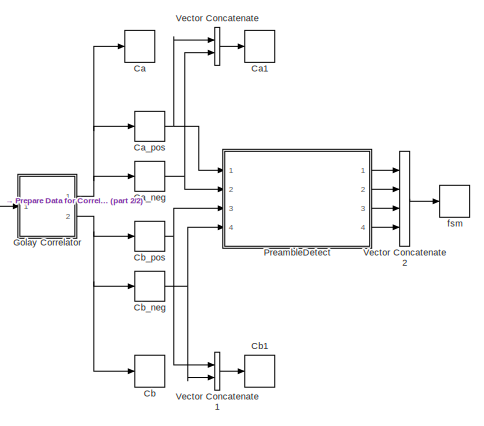
[diagram: root canvas - part 1/2, right side, full height]
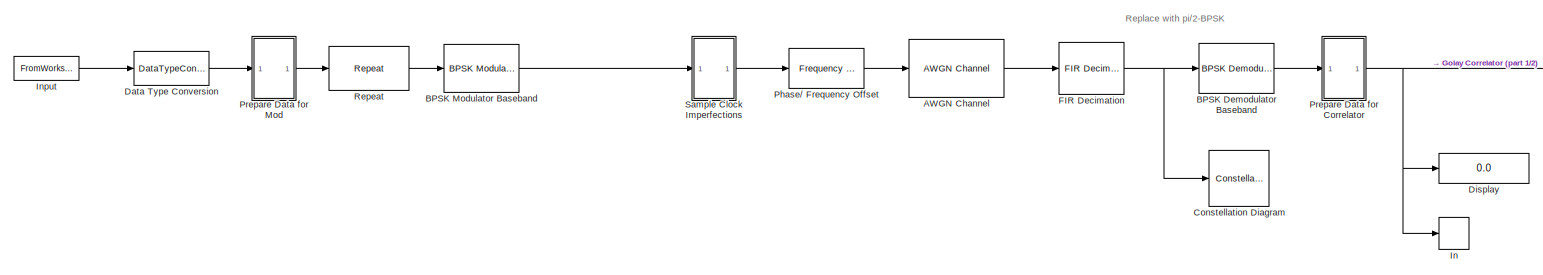
[diagram: root canvas - part 2/2, full width, middle band]
MODEL slx_14ae3e399969
KIND model
BLOCK [Reference] AWGN Channel  REF=commchan3/AWGN
Channel
  EbNodB = 0
  EsNodB = 10
  InputProcessing = Columns as channels (frame based)
  Ports = [1, 1]
  Ps = 1
  SNRdB = 10
  SourceBlock = commchan3/AWGN\nChannel
  SourceType = AWGN Channel
  Tsym = 1
  UserDataPersistent = on
  bitsPerSym = 1
  noiseMode = Signal to noise ratio  (Eb/No)
  seed = 67
  variance = 1
BLOCK [Reference] BPSK Demodulator Baseband  REF=commdigbbndpm3/BPSK
Demodulator
Baseband
  DecType = Hard decision
  Ph = 0
  Ports = [1, 1]
  SourceBlock = commdigbbndpm3/BPSK\nDemodulator\nBaseband
  SourceType = BPSK Demodulator Baseband
  VarSource = Dialog
  Variance = 1
  derotateFactorDTMode = Same word length as input
  derotateFactorWordLen = 16
  outDtype = Inherit via internal rule
BLOCK [Reference] BPSK Modulator Baseband  REF=commdigbbndpm3/BPSK
Modulator
Baseband
  Ph = 0
  Ports = [1, 1]
  SourceBlock = commdigbbndpm3/BPSK\nModulator\nBaseband
  SourceType = BPSK Modulator Baseband
  outDtype = double
  outFracLen = 15
  outFracLenMode = Best precision
  outUDDataType = sfix(16)
  outWordLen = 16
BLOCK [TimeScope] Ca
  DefaultConfigurationName = spbscopes.TimeScopeBlockCfg
  NumInputPorts = 1
  Ports = [1]
  ScopeSpecificationString = spbscopes.TimeScopeBlockCfg('CurrentConfiguration', extmgr.ConfigurationSet(extmgr.Configuration('Core','General UI',true),extmgr.Configuration('Core','Source UI',true),extmgr.Configuration('Sources','WiredSimulink',true,'PointsPerSignal',500000,'DataLoggingVariableName','ScopeData3'),extmgr.Configuration('Visuals','Time Domain',true,'DisplayPropertyDefaults',struct('MinYLimReal','-140','MaxYLimRe...<+1461ch>
  UserDataPersistent = on
BLOCK [TimeScope] Ca1
  DefaultConfigurationName = spbscopes.TimeScopeBlockCfg
  NumInputPorts = 1
  Ports = [1]
  ScopeSpecificationString = spbscopes.TimeScopeBlockCfg('CurrentConfiguration', extmgr.ConfigurationSet(extmgr.Configuration('Core','General UI',true),extmgr.Configuration('Core','Source UI',true),extmgr.Configuration('Sources','WiredSimulink',true,'PointsPerSignal',500000,'DataLoggingVariableName','ScopeData2'),extmgr.Configuration('Visuals','Time Domain',true,'DisplayPropertyDefaults',struct('MinYLimReal','-0.125','MaxYLim...<+1468ch>
  UserDataPersistent = on
BLOCK [HitCross] Ca_neg
  HitCrossingDirection = falling
  HitCrossingOffset = -50
  Ports = [1, 1]
BLOCK [HitCross] Ca_pos
  HitCrossingDirection = rising
  HitCrossingOffset = 50
  Ports = [1, 1]
BLOCK [TimeScope] Cb
  DefaultConfigurationName = spbscopes.TimeScopeBlockCfg
  NumInputPorts = 1
  Ports = [1]
  ScopeSpecificationString = spbscopes.TimeScopeBlockCfg('CurrentConfiguration', extmgr.ConfigurationSet(extmgr.Configuration('Core','General UI',true),extmgr.Configuration('Core','Source UI',true),extmgr.Configuration('Sources','WiredSimulink',true,'PointsPerSignal',50000,'DataLoggingVariableName','ScopeData4'),extmgr.Configuration('Visuals','Time Domain',true,'DisplayPropertyDefaults',struct('MinYLimReal','-140','MaxYLimRea...<+1437ch>
  UserDataPersistent = on
BLOCK [TimeScope] Cb1
  DefaultConfigurationName = spbscopes.TimeScopeBlockCfg
  NumInputPorts = 1
  Ports = [1]
  ScopeSpecificationString = spbscopes.TimeScopeBlockCfg('CurrentConfiguration', extmgr.ConfigurationSet(extmgr.Configuration('Core','General UI',true),extmgr.Configuration('Core','Source UI',true),extmgr.Configuration('Sources','WiredSimulink',true,'PointsPerSignal',50000,'DataLoggingVariableName','ScopeData3'),extmgr.Configuration('Visuals','Time Domain',true,'DisplayPropertyDefaults',struct('MinYLimReal','-0.125','MaxYLimR...<+1467ch>
  UserDataPersistent = on
BLOCK [HitCross] Cb_neg
  HitCrossingDirection = falling
  HitCrossingOffset = -50
  Ports = [1, 1]
BLOCK [HitCross] Cb_pos
  HitCrossingDirection = rising
  HitCrossingOffset = 50
  Ports = [1, 1]
BLOCK [ConstellationDiagram] Constellation Diagram
  Ports = [1]
  ScopeSpecificationString = comm.scopes.ConstellationDiagramBlockCfg('CurrentConfiguration', extmgr.ConfigurationSet(extmgr.Configuration('Core','General UI',true),extmgr.Configuration('Core','Source UI',true),extmgr.Configuration('Sources','WiredSimulink',true),extmgr.Configuration('Sources','Simulink',false),extmgr.Configuration('Sources','File',false),extmgr.Configuration('Sources','Workspace',false),extmgr.Configuration(...<+1721ch>
BLOCK [DataTypeConversion] Data Type Conversion
  OutDataTypeStr = int8
  RndMeth = Nearest
  SaturateOnIntegerOverflow = off
BLOCK [Display] Display
  Decimation = 1
  Ports = [1]
BLOCK [Reference] FIR Decimation  REF=dspmlti4/FIR
Decimation
  D = 4
  FilterObject = Hm_firdecim
  FilterSource = Specify via dialog
  InputProcessing = Columns as channels (frame based)
  LockScale = off
  Ports = [1, 1]
  SourceBlock = dspmlti4/FIR\nDecimation
  SourceType = FIR Decimation
  UserDataPersistent = on
  accumDataTypeStr = Inherit: Inherit via internal rule
  accumFracLength = 30
  accumLastDataTypeStr = Inherit: Inherit via internal rule
  accumMode = Inherit via internal rule
  accumWordLength = 32
  additionalParams = off
  allowOverrides = off
  filtStruct = Direct form
  firstCoeffDataTypeStr = Inherit: Same word length as input
  firstCoeffFracLength = 15
  firstCoeffLastDataTypeStr = Inherit: Same word length as input
  firstCoeffMax = []
  firstCoeffMin = []
  firstCoeffMode = Same word length as input
  firstCoeffWordLength = 16
  framing = Allow multirate processing
  h = fir1(45, 0.18)
  inputOffset = 0
  outputBufInitCond = 0
  outputDataTypeStr = Inherit: Same as accumulator
  outputFracLength = 15
  outputLastDataTypeStr = Inherit: Same as accumulator
  outputMax = []
  outputMin = []
  outputMode = Same as accumulator
  outputWordLength = 16
  overflowMode = off
  prodOutputDataTypeStr = Inherit: Inherit via internal rule
  prodOutputFracLength = 30
  prodOutputLastDataTypeStr = Inherit: Inherit via internal rule
  prodOutputMode = Inherit via internal rule
  prodOutputWordLength = 32
  roundingMode = Floor
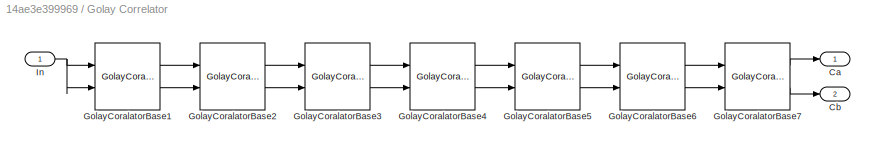
BLOCK [SubSystem] Golay Correlator
  Ports = [1, 2]
  RequestExecContextInheritance = off
BLOCK [Outport] Golay Correlator/Ca
  IconDisplay = Port number
BLOCK [Outport] Golay Correlator/Cb
  IconDisplay = Port number
  Port = 2
BLOCK [Reference] Golay Correlator/GolayCoralatorBase1  REF=golayLib/GolayCoralatorBase
  Ports = [2, 2]
  SourceBlock = golayLib/GolayCoralatorBase
  SourceType = Golay Correlator Base
  dSub = D_128(1)
  wSub = W_128(1)
BLOCK [Reference] Golay Correlator/GolayCoralatorBase2  REF=golayLib/GolayCoralatorBase
  Ports = [2, 2]
  SourceBlock = golayLib/GolayCoralatorBase
  SourceType = Golay Correlator Base
  dSub = D_128(2)
  wSub = W_128(2)
BLOCK [Reference] Golay Correlator/GolayCoralatorBase3  REF=golayLib/GolayCoralatorBase
  Ports = [2, 2]
  SourceBlock = golayLib/GolayCoralatorBase
  SourceType = Golay Correlator Base
  dSub = D_128(3)
  wSub = W_128(3)
BLOCK [Reference] Golay Correlator/GolayCoralatorBase4  REF=golayLib/GolayCoralatorBase
  Ports = [2, 2]
  SourceBlock = golayLib/GolayCoralatorBase
  SourceType = Golay Correlator Base
  dSub = D_128(4)
  wSub = W_128(4)
BLOCK [Reference] Golay Correlator/GolayCoralatorBase5  REF=golayLib/GolayCoralatorBase
  Ports = [2, 2]
  SourceBlock = golayLib/GolayCoralatorBase
  SourceType = Golay Correlator Base
  dSub = D_128(5)
  wSub = W_128(5)
BLOCK [Reference] Golay Correlator/GolayCoralatorBase6  REF=golayLib/GolayCoralatorBase
  Ports = [2, 2]
  SourceBlock = golayLib/GolayCoralatorBase
  SourceType = Golay Correlator Base
  dSub = D_128(6)
  wSub = W_128(6)
BLOCK [Reference] Golay Correlator/GolayCoralatorBase7  REF=golayLib/GolayCoralatorBase
  Ports = [2, 2]
  SourceBlock = golayLib/GolayCoralatorBase
  SourceType = Golay Correlator Base
  dSub = D_128(7)
  wSub = W_128(7)
BLOCK [Inport] Golay Correlator/In
  IconDisplay = Port number
BLOCK [TimeScope] In
  DefaultConfigurationName = spbscopes.TimeScopeBlockCfg
  NumInputPorts = 1
  Ports = [1]
  ScopeSpecificationString = spbscopes.TimeScopeBlockCfg('CurrentConfiguration', extmgr.ConfigurationSet(extmgr.Configuration('Core','General UI',true),extmgr.Configuration('Core','Source UI',true),extmgr.Configuration('Sources','WiredSimulink',true,'PointsPerSignal',5000000,'DataLoggingVariableName','ScopeData2'),extmgr.Configuration('Visuals','Time Domain',true,'DisplayPropertyDefaults',struct('MinYLimReal','-1.25','MaxYLim...<+1457ch>
  UserDataPersistent = on
BLOCK [FromWorkspace] Input
  Interpolate = off
  OutputAfterFinalValue = Holding final value
  SampleTime = 1
  VariableName = simX
  ZeroCross = on
BLOCK [Reference] Phase// Frequency Offset  REF=commrflib2/Phase//
Frequency
Offset
  Ports = [1, 1]
  SourceBlock = commrflib2/Phase//\nFrequency\nOffset
  SourceType = Phase/Frequency Offset
  freqOffset = 0
  freqPort = off
  phaseOffset = 0
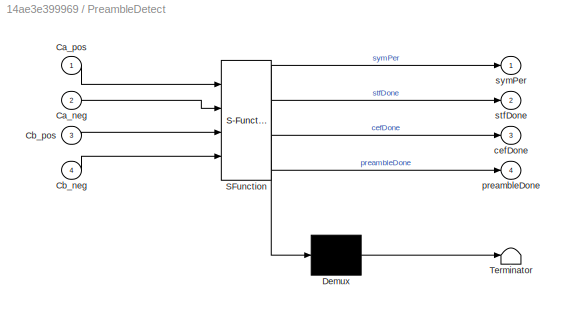
BLOCK [SubSystem] PreambleDetect
  ErrorFcn = Stateflow.Translate.translate
  PermitHierarchicalResolution = ExplicitOnly
  Ports = [4, 4]
  RequestExecContextInheritance = off
  SFBlockType = Chart
  TreatAsAtomicUnit = on
BLOCK [Demux] PreambleDetect/ Demux 
  Outputs = 1
  Ports = [1, 1]
BLOCK [S-Function] PreambleDetect/ SFunction 
  EnableBusSupport = on
  FunctionName = sf_sfun
  Parameters = cbTol,cef_note,tol
  PortCounts = [4 5]
  Ports = [4, 5]
  Tag = Stateflow S-Function golayCorrelator 3
BLOCK [Terminator] PreambleDetect/ Terminator 
BLOCK [Inport] PreambleDetect/Ca_neg
  IconDisplay = Port number
  Port = 2
BLOCK [Inport] PreambleDetect/Ca_pos
  IconDisplay = Port number
BLOCK [Inport] PreambleDetect/Cb_neg
  IconDisplay = Port number
  Port = 4
BLOCK [Inport] PreambleDetect/Cb_pos
  IconDisplay = Port number
  Port = 3
BLOCK [Outport] PreambleDetect/cefDone
  IconDisplay = Port number
  Port = 3
BLOCK [Outport] PreambleDetect/preambleDone
  IconDisplay = Port number
  Port = 4
BLOCK [Outport] PreambleDetect/stfDone
  IconDisplay = Port number
  Port = 2
BLOCK [Outport] PreambleDetect/symPer
  IconDisplay = Port number
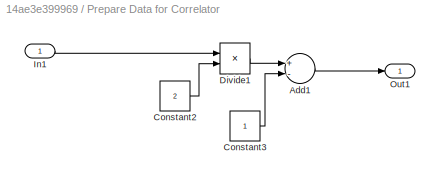
BLOCK [SubSystem] Prepare Data for Correlator
  Ports = [1, 1]
  RequestExecContextInheritance = off
BLOCK [Sum] Prepare Data for Correlator/Add1
  InputSameDT = off
  Inputs = +-
  OutDataTypeStr = Inherit: Inherit via internal rule
  Ports = [2, 1]
  SaturateOnIntegerOverflow = off
BLOCK [Constant] Prepare Data for Correlator/Constant2
  Value = 2
BLOCK [Constant] Prepare Data for Correlator/Constant3
BLOCK [Product] Prepare Data for Correlator/Divide1
  InputSameDT = off
  Inputs = **
  OutDataTypeStr = Inherit: Inherit via internal rule
  Ports = [2, 1]
  RndMeth = Floor
  SaturateOnIntegerOverflow = off
BLOCK [Inport] Prepare Data for Correlator/In1
  IconDisplay = Port number
BLOCK [Outport] Prepare Data for Correlator/Out1
  IconDisplay = Port number
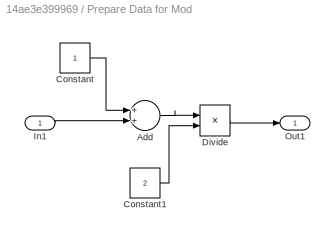
BLOCK [SubSystem] Prepare Data for Mod
  Ports = [1, 1]
  RequestExecContextInheritance = off
BLOCK [Sum] Prepare Data for Mod/Add
  InputSameDT = off
  OutDataTypeStr = Inherit: Inherit via internal rule
  Ports = [2, 1]
  SaturateOnIntegerOverflow = off
BLOCK [Constant] Prepare Data for Mod/Constant
BLOCK [Constant] Prepare Data for Mod/Constant1
  Value = 2
BLOCK [Product] Prepare Data for Mod/Divide
  InputSameDT = off
  Inputs = */
  OutDataTypeStr = Inherit: Inherit via internal rule
  Ports = [2, 1]
  RndMeth = Floor
  SaturateOnIntegerOverflow = off
BLOCK [Inport] Prepare Data for Mod/In1
  IconDisplay = Port number
BLOCK [Outport] Prepare Data for Mod/Out1
  IconDisplay = Port number
BLOCK [Reference] Repeat  REF=dspsigops/Repeat
  InputProcessing = Columns as channels (frame based)
  N = 4
  Ports = [1, 1]
  RateOptions = Allow multirate processing
  SourceBlock = dspsigops/Repeat
  SourceType = Repeat
  UserDataPersistent = on
  ic = 0
  mode = Unused parameter value
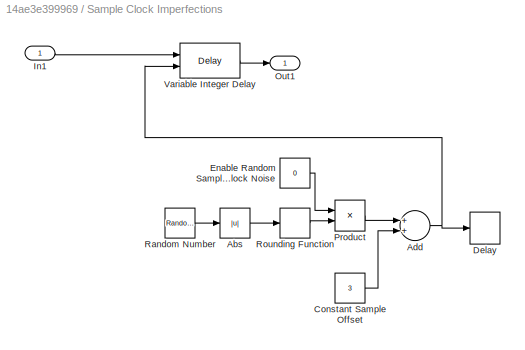
BLOCK [SubSystem] Sample Clock Imperfections
  Ports = [1, 1]
  RequestExecContextInheritance = off
BLOCK [Abs] Sample Clock Imperfections/Abs
  SaturateOnIntegerOverflow = off
BLOCK [Sum] Sample Clock Imperfections/Add
  InputSameDT = off
  OutDataTypeStr = Inherit: Inherit via internal rule
  Ports = [2, 1]
  SaturateOnIntegerOverflow = off
BLOCK [Constant] Sample Clock Imperfections/Constant Sample Offset
  Value = 3
BLOCK [TimeScope] Sample Clock Imperfections/Delay
  DefaultConfigurationName = spbscopes.TimeScopeBlockCfg
  NumInputPorts = 1
  Ports = [1]
  ScopeSpecificationString = spbscopes.TimeScopeBlockCfg('CurrentConfiguration', extmgr.ConfigurationSet(extmgr.Configuration('Core','General UI',true),extmgr.Configuration('Core','Source UI',true),extmgr.Configuration('Sources','WiredSimulink',true,'PointsPerSignal',5000000,'DataLoggingVariableName','ScopeData1'),extmgr.Configuration('Visuals','Time Domain',true,'DisplayPropertyDefaults',struct('MinYLimReal','2','MaxYLimReal...<+1413ch>
  UserDataPersistent = on
BLOCK [Constant] Sample Clock Imperfections/Enable Random Sample Clock Noise
  Value = 0
BLOCK [Inport] Sample Clock Imperfections/In1
  IconDisplay = Port number
BLOCK [Outport] Sample Clock Imperfections/Out1
  IconDisplay = Port number
BLOCK [Product] Sample Clock Imperfections/Product
  InputSameDT = off
  OutDataTypeStr = Inherit: Inherit via internal rule
  Ports = [2, 1]
  RndMeth = Floor
  SaturateOnIntegerOverflow = off
BLOCK [RandomNumber] Sample Clock Imperfections/Random Number
  Mean = 1
  SampleTime = 0.25
BLOCK [Rounding] Sample Clock Imperfections/Rounding Function
  Operator = round
BLOCK [Delay] Sample Clock Imperfections/Variable Integer Delay
  DelayLengthSource = Input port
  InputPortMap = u0,p1
  Ports = [2, 1]
BLOCK [Concatenate] Vector Concatenate
  ConcatenateDimension = 2
  Mode = Multidimensional array
  Ports = [2, 1]
BLOCK [Concatenate] Vector Concatenate1
  ConcatenateDimension = 2
  Mode = Multidimensional array
  Ports = [2, 1]
BLOCK [Concatenate] Vector Concatenate2
  ConcatenateDimension = 2
  Mode = Multidimensional array
  NumInputs = 4
  Ports = [4, 1]
BLOCK [TimeScope] fsm
  DefaultConfigurationName = spbscopes.TimeScopeBlockCfg
  NumInputPorts = 1
  Ports = [1]
  ScopeSpecificationString = spbscopes.TimeScopeBlockCfg('CurrentConfiguration', extmgr.ConfigurationSet(extmgr.Configuration('Core','General UI',true),extmgr.Configuration('Core','Source UI',true),extmgr.Configuration('Sources','WiredSimulink',true,'PointsPerSignal',50000,'DataLoggingVariableName','ScopeData1'),extmgr.Configuration('Visuals','Time Domain',true,'DisplayPropertyDefaults',struct('MinYLimReal','-16.0317','MaxYLi...<+1887ch>
  UserDataPersistent = on
ANNOTATION (root): Replace with pi/2-BPSK
LINE AWGN Channel:1 -> FIR Decimation:1
LINE BPSK Demodulator Baseband:1 -> Prepare Data for Correlator:1
LINE BPSK Modulator Baseband:1 -> Sample Clock Imperfections:1
NET Ca_neg:1 -> PreambleDetect:2, Vector Concatenate:2
NET Ca_pos:1 -> PreambleDetect:1, Vector Concatenate:1
NET Cb_neg:1 -> PreambleDetect:4, Vector Concatenate1:2
NET Cb_pos:1 -> PreambleDetect:3, Vector Concatenate1:1
LINE Data Type Conversion:1 -> Prepare Data for Mod:1
NET FIR Decimation:1 -> BPSK Demodulator Baseband:1, Constellation Diagram:1
LINE Golay Correlator/GolayCoralatorBase1:1 -> Golay Correlator/GolayCoralatorBase2:1
LINE Golay Correlator/GolayCoralatorBase1:2 -> Golay Correlator/GolayCoralatorBase2:2
LINE Golay Correlator/GolayCoralatorBase2:1 -> Golay Correlator/GolayCoralatorBase3:1
LINE Golay Correlator/GolayCoralatorBase2:2 -> Golay Correlator/GolayCoralatorBase3:2
LINE Golay Correlator/GolayCoralatorBase3:1 -> Golay Correlator/GolayCoralatorBase4:1
LINE Golay Correlator/GolayCoralatorBase3:2 -> Golay Correlator/GolayCoralatorBase4:2
LINE Golay Correlator/GolayCoralatorBase4:1 -> Golay Correlator/GolayCoralatorBase5:1
LINE Golay Correlator/GolayCoralatorBase4:2 -> Golay Correlator/GolayCoralatorBase5:2
LINE Golay Correlator/GolayCoralatorBase5:1 -> Golay Correlator/GolayCoralatorBase6:1
LINE Golay Correlator/GolayCoralatorBase5:2 -> Golay Correlator/GolayCoralatorBase6:2
LINE Golay Correlator/GolayCoralatorBase6:1 -> Golay Correlator/GolayCoralatorBase7:1
LINE Golay Correlator/GolayCoralatorBase6:2 -> Golay Correlator/GolayCoralatorBase7:2
LINE Golay Correlator/GolayCoralatorBase7:1 -> Golay Correlator/Ca:1
LINE Golay Correlator/GolayCoralatorBase7:2 -> Golay Correlator/Cb:1
NET Golay Correlator/In:1 -> Golay Correlator/GolayCoralatorBase1:1, Golay Correlator/GolayCoralatorBase1:2
NET Golay Correlator:1 -> Ca:1, Ca_neg:1, Ca_pos:1
NET Golay Correlator:2 -> Cb:1, Cb_neg:1, Cb_pos:1
LINE Input:1 -> Data Type Conversion:1
LINE Phase// Frequency Offset:1 -> AWGN Channel:1
LINE PreambleDetect:1 -> Vector Concatenate2:1
LINE PreambleDetect:2 -> Vector Concatenate2:2
LINE PreambleDetect:3 -> Vector Concatenate2:3
LINE PreambleDetect:4 -> Vector Concatenate2:4
LINE Prepare Data for Correlator/Add1:1 -> Prepare Data for Correlator/Out1:1
LINE Prepare Data for Correlator/Constant2:1 -> Prepare Data for Correlator/Divide1:2
LINE Prepare Data for Correlator/Constant3:1 -> Prepare Data for Correlator/Add1:2
LINE Prepare Data for Correlator/Divide1:1 -> Prepare Data for Correlator/Add1:1
LINE Prepare Data for Correlator/In1:1 -> Prepare Data for Correlator/Divide1:1
NET Prepare Data for Correlator:1 -> Display:1, Golay Correlator:1, In:1
LINE Prepare Data for Mod/Add:1 -> Prepare Data for Mod/Divide:1
LINE Prepare Data for Mod/Constant1:1 -> Prepare Data for Mod/Divide:2
LINE Prepare Data for Mod/Constant:1 -> Prepare Data for Mod/Add:1
LINE Prepare Data for Mod/Divide:1 -> Prepare Data for Mod/Out1:1
LINE Prepare Data for Mod/In1:1 -> Prepare Data for Mod/Add:2
LINE Prepare Data for Mod:1 -> Repeat:1
LINE Repeat:1 -> BPSK Modulator Baseband:1
LINE Sample Clock Imperfections/Abs:1 -> Sample Clock Imperfections/Rounding Function:1
NET Sample Clock Imperfections/Add:1 -> Sample Clock Imperfections/Delay:1, Sample Clock Imperfections/Variable Integer Delay:2
LINE Sample Clock Imperfections/Constant Sample Offset:1 -> Sample Clock Imperfections/Add:2
LINE Sample Clock Imperfections/Enable Random Sample Clock Noise:1 -> Sample Clock Imperfections/Product:1
LINE Sample Clock Imperfections/In1:1 -> Sample Clock Imperfections/Variable Integer Delay:1
LINE Sample Clock Imperfections/Product:1 -> Sample Clock Imperfections/Add:1
LINE Sample Clock Imperfections/Random Number:1 -> Sample Clock Imperfections/Abs:1
LINE Sample Clock Imperfections/Rounding Function:1 -> Sample Clock Imperfections/Product:2
LINE Sample Clock Imperfections/Variable Integer Delay:1 -> Sample Clock Imperfections/Out1:1
LINE Sample Clock Imperfections:1 -> Phase// Frequency Offset:1
LINE Vector Concatenate1:1 -> Cb1:1
LINE Vector Concatenate2:1 -> fsm:1
LINE Vector Concatenate:1 -> Ca1:1
note: NET lines group one-source signal fan-out (src -> all destinations, sorted); 1:1 wires keep LINE
CHART PreambleDetect states=11 transitions=18
  STATE_LABEL 'Preamble'
  STATE_LABEL 'STF'
  STATE_LABEL 'STF_Neg\nentry:\n symPer = (symPer + counter)/2;\n cbCount = cbCount + 1;\n counter = 1;\nduring:\n counter = counter +1;'
  STATE_LABEL 'STF_Initial\nentry:\n symPer = (symPer + counter)/2;\n cbCount = cbCount + 1;\n counter = 1;\nduring:\n counter = counter +1;\n'
  STATE_LABEL '[Cb_pos == 1]'
  STATE_LABEL '[Cb_neg == 1]'
  STATE_LABEL 'CEF'
  STATE_LABEL 'Need actual logic for CEF, right now only checks for correct sequence'
  STATE_LABEL 'STF_Done\nentry:\nstfDone = 1;\nsymPer = (symPer + counter)/2;\ncbCount = cbCount + 1;\ncounter = 1;\nduring:\n counter = counter +1;'
  STATE_LABEL 'CEF_Checking\nentry:\nsymPer = (symPer + counter)/2;\ncefCount = cefCount + 1;\ncounter = 1;\nduring:\n counter = counter +1;'
  STATE_LABEL '[Cb_neg == 1]/{\ncefCount = 1;\n}'
  STATE_LABEL '[cefSeqCheck(Ca_pos,Ca_neg,Cb_pos, Cb_neg, cefCount) == 1 && cefCount < length(cef_note)]'
  STATE_LABEL '[Ca_neg == 1]'
  STATE_LABEL 'STF'
  STATE_LABEL 'STF_Neg\nentry:\n symPer = (symPer + counter)/2;\n cbCount = cbCount + 1;\n counter = 1;\nduring:\n counter = counter +1;'
  STATE_LABEL 'STF_Initial\nentry:\n symPer = (symPer + counter)/2;\n cbCount = cbCount + 1;\n counter = 1;\nduring:\n counter = counter +1;\n'
  STATE_LABEL '[Cb_pos == 1]'
  STATE_LABEL '[Cb_neg == 1]'
  STATE_LABEL 'STF_Neg\nentry:\n symPer = (symPer + counter)/2;\n cbCount = cbCount + 1;\n counter = 1;\nduring:\n counter = counter +1;'
  STATE_LABEL 'STF_Initial\nentry:\n symPer = (symPer + counter)/2;\n cbCount = cbCount + 1;\n counter = 1;\nduring:\n counter = counter +1;\n'
  STATE_LABEL 'CEF'
  STATE_LABEL 'Need actual logic for CEF, right now only checks for correct sequence'
  STATE_LABEL 'STF_Done\nentry:\nstfDone = 1;\nsymPer = (symPer + counter)/2;\ncbCount = cbCount + 1;\ncounter = 1;\nduring:\n counter = counter +1;'
  STATE_LABEL 'CEF_Checking\nentry:\nsymPer = (symPer + counter)/2;\ncefCount = cefCount + 1;\ncounter = 1;\nduring:\n counter = counter +1;'
  STATE_LABEL '[Cb_neg == 1]/{\ncefCount = 1;\n}'
  STATE_LABEL 'Need actual logic for CEF, right now only checks for correct sequence'
  STATE_LABEL 'STF_Done\nentry:\nstfDone = 1;\nsymPer = (symPer + counter)/2;\ncbCount = cbCount + 1;\ncounter = 1;\nduring:\n counter = counter +1;'
  STATE_LABEL 'CEF_Checking\nentry:\nsymPer = (symPer + counter)/2;\ncefCount = cefCount + 1;\ncounter = 1;\nduring:\n counter = counter +1;'
  STATE_LABEL 'Waiting\nentry:\nstfDone = 0;\ncefDone = 0;\npreambleDone = 0;'
  STATE_LABEL 'Done\nentry:\ncefDone = 1;\npreambleDone = 1;'
  STATE_LABEL 'ok = cefSeqCheck(Ca_p, Ca_n, Cb_p, Cb_n, cnt)'
  STATE_LABEL 'SCRIPT:\nfunction ok = cefSeqCheck(Ca_p, Ca_n, Cb_p, Cb_n, cnt)\nif(Ca_p == 0 && Ca_n == 0 && Cb_p == 0 && Cb_n == 0)\n    ok = 2; %% not triggered\nelse\n    switch(cef_note(cnt))\n        case 1\n            if(Ca_p == 1)\n                ok = 1;\n            else\n                ok = 0;\n            end\n        case 2\n            if(Cb_p == 1)\n                ok = 1;\n            else\n                ok =...<+319ch>'
